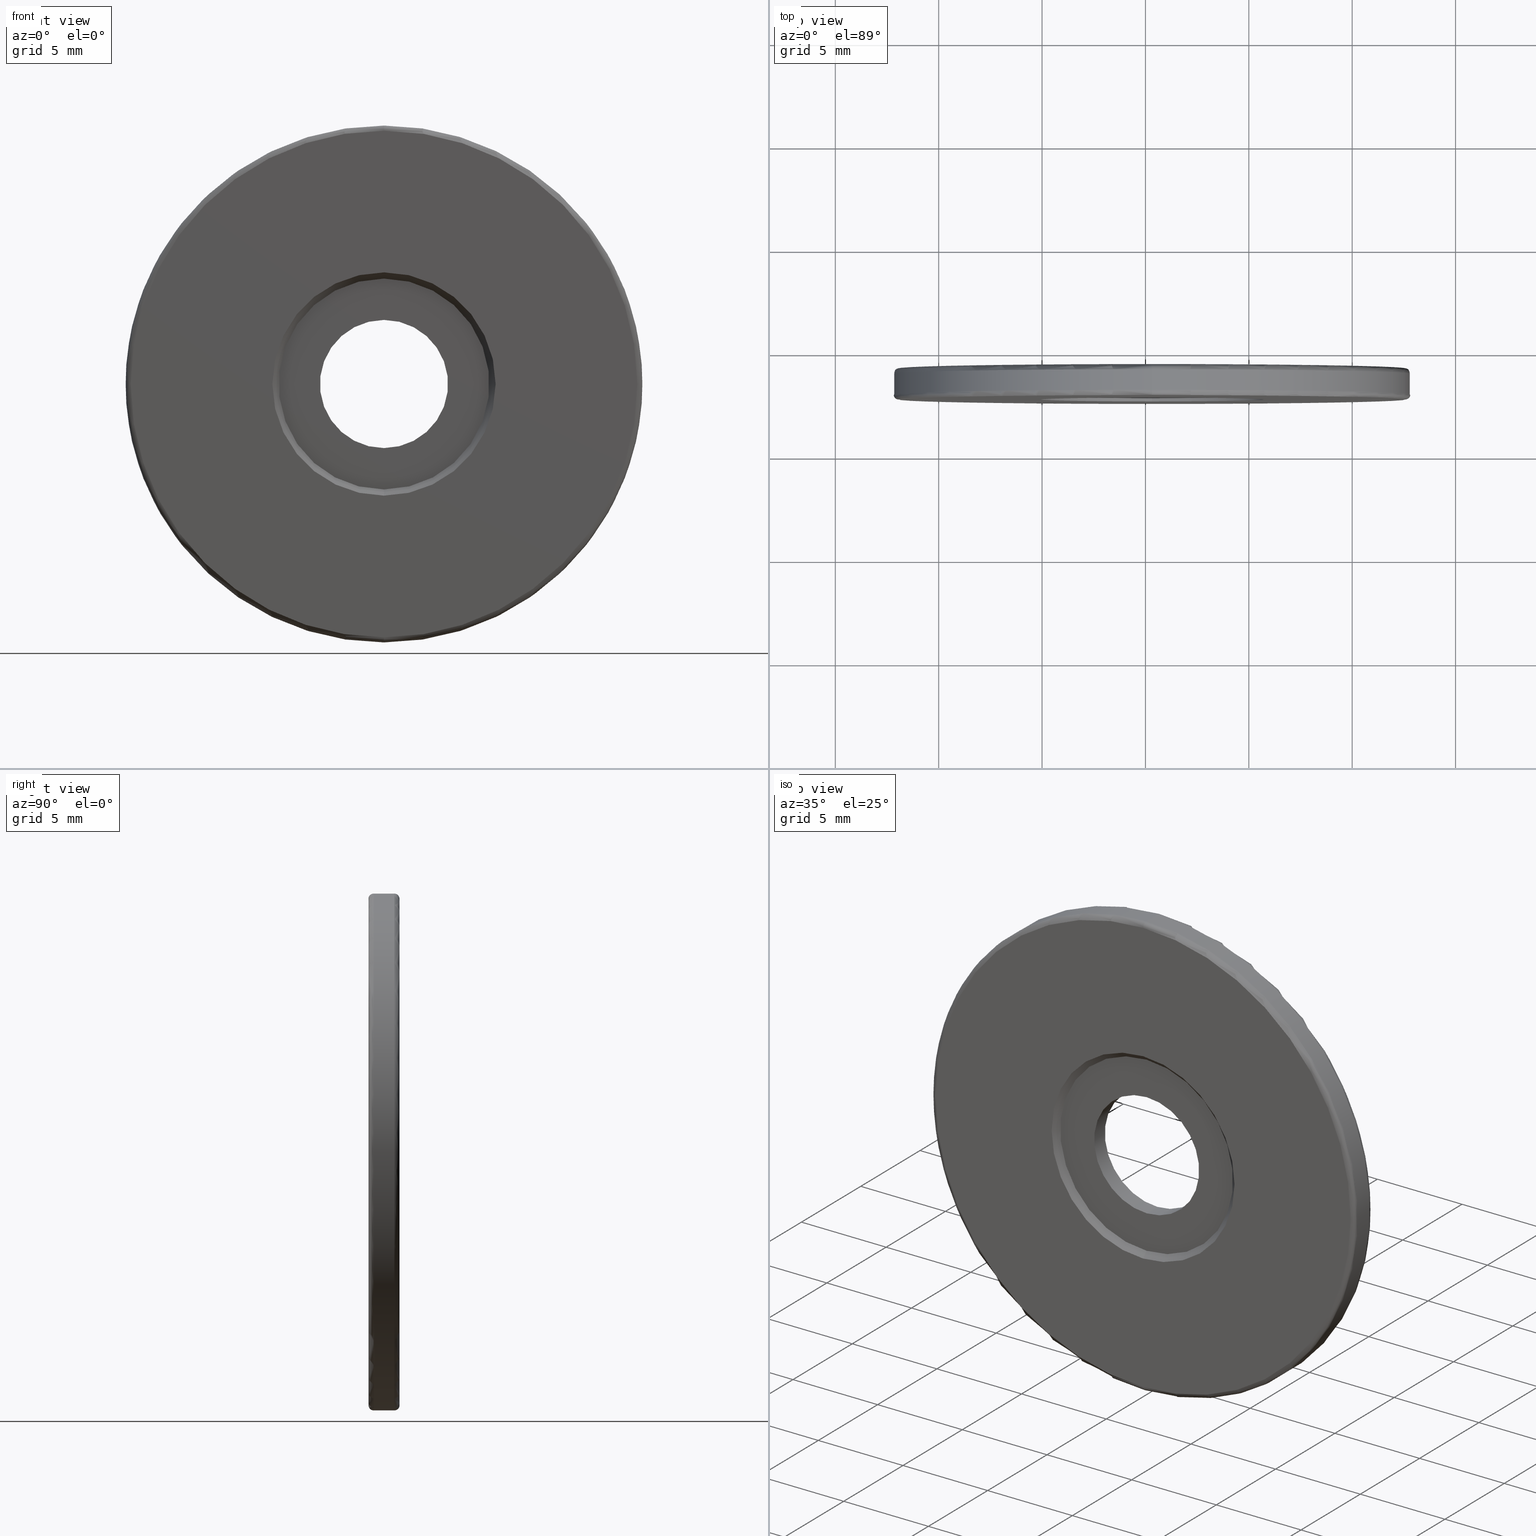
[diagram: canonical four-view strip — front | top / right | iso, engineering-drawing reading convention]
A machine part, canonical four-view strip (front | top / right | iso — engineering-drawing reading convention). The complete STEP part file that produces these views, byte-faithful:
ISO-10303-21;
HEADER;
FILE_DESCRIPTION (( 'STEP AP203' ),
    '1' );
FILE_NAME ('1.4.2.100_ZGH-25-DK1.5.STEP',
    '2022-04-15T02:59:19',
    ( '' ),
    ( '' ),
    'SwSTEP 2.0',
    'SolidWorks 2021',
    '' );
FILE_SCHEMA (( 'CONFIG_CONTROL_DESIGN' ));
ENDSEC;

DATA;
#1 = FACE_OUTER_BOUND ( 'NONE', #225, .T. ) ;
#2 = VECTOR ( 'NONE', #224, 1000.000000000000000 ) ;
#3 = AXIS2_PLACEMENT_3D ( 'NONE', #15, #168, #432 ) ;
#4 = FACE_OUTER_BOUND ( 'NONE', #51, .T. ) ;
#5 = ORIENTED_EDGE ( 'NONE', *, *, #411, .T. ) ;
#6 = FACE_OUTER_BOUND ( 'NONE', #358, .T. ) ;
#7 = ORIENTED_EDGE ( 'NONE', *, *, #420, .F. ) ;
#8 = CARTESIAN_POINT ( 'NONE',  ( -4.682026255059962949, -0.8449759769982747581, 37.50000000000000711 ) ) ;
#9 = VERTEX_POINT ( 'NONE', #408 ) ;
#10 = EDGE_CURVE ( 'NONE', #267, #476, #139, .T. ) ;
#11 = CONICAL_SURFACE ( 'NONE', #380, 5.100000000000000533, 0.7853981633974453924 ) ;
#12 = CARTESIAN_POINT ( 'NONE',  ( -4.682026255059964726, -2.344975976998274980, 25.00000000000000000 ) ) ;
#13 = AXIS2_PLACEMENT_3D ( 'NONE', #444, #89, #327 ) ;
#14 = EDGE_LOOP ( 'NONE', ( #232, #16, #163, #234 ) ) ;
#15 = CARTESIAN_POINT ( 'NONE',  ( -4.682026255059964726, -2.094975976998274536, 25.00000000000000000 ) ) ;
#16 = ORIENTED_EDGE ( 'NONE', *, *, #211, .T. ) ;
#17 = ADVANCED_FACE ( 'NONE', ( #436 ), #154, .F. ) ;
#18 = CARTESIAN_POINT ( 'NONE',  ( -4.682026255059964726, -0.8449759769982747581, 25.00000000000000000 ) ) ;
#19 = PRODUCT_RELATED_PRODUCT_CATEGORY ( 'detail', '', ( #316 ) ) ;
#20 = APPROVAL_STATUS ( 'not_yet_approved' ) ;
#21 = DIRECTION ( 'NONE',  ( 0.0000000000000000000, -0.7071067811865505703, -0.7071067811865444641 ) ) ;
#22 = AXIS2_PLACEMENT_3D ( 'NONE', #26, #375, #24 ) ;
#23 = COORDINATED_UNIVERSAL_TIME_OFFSET ( 8, 0, .AHEAD. ) ;
#24 = DIRECTION ( 'NONE',  ( 0.0000000000000000000, 0.0000000000000000000, -1.000000000000000000 ) ) ;
#25 = PERSON_AND_ORGANIZATION_ROLE ( 'creator' ) ;
#26 = CARTESIAN_POINT ( 'NONE',  ( -4.682026255059964726, -0.8449759769982747581, 25.00000000000000000 ) ) ;
#27 = PERSON_AND_ORGANIZATION ( #159, #123 ) ;
#28 = DIRECTION ( 'NONE',  ( 0.0000000000000000000, 1.000000000000000000, 0.0000000000000000000 ) ) ;
#29 = TOROIDAL_SURFACE ( 'NONE', #106, 12.25000000000000000, 0.2500000000000000000 ) ;
#30 = CIRCLE ( 'NONE', #71, 12.25000000000000355 ) ;
#31 = CARTESIAN_POINT ( 'NONE',  ( -4.682026255059964726, -2.344975976998274980, 25.00000000000000000 ) ) ;
#32 = LINE ( 'NONE', #115, #397 ) ;
#33 = EDGE_CURVE ( 'NONE', #476, #43, #355, .T. ) ;
#34 = ORIENTED_EDGE ( 'NONE', *, *, #182, .T. ) ;
#35 = CC_DESIGN_PERSON_AND_ORGANIZATION_ASSIGNMENT ( #27, #285, ( #324 ) ) ;
#36 = CONICAL_SURFACE ( 'NONE', #322, 5.100000000000000533, 0.7853981633974453924 ) ;
#37 = DIRECTION ( 'NONE',  ( 0.0000000000000000000, 0.0000000000000000000, 1.000000000000000000 ) ) ;
#38 = ORIENTED_EDGE ( 'NONE', *, *, #319, .T. ) ;
#39 = CARTESIAN_POINT ( 'NONE',  ( -4.682026255059964726, -0.8449759769982747581, 25.00000000000000000 ) ) ;
#40 = ORIENTED_EDGE ( 'NONE', *, *, #361, .T. ) ;
#41 = EDGE_CURVE ( 'NONE', #387, #125, #332, .T. ) ;
#42 = DIRECTION ( 'NONE',  ( 0.0000000000000000000, 1.000000000000000000, 0.0000000000000000000 ) ) ;
#43 = VERTEX_POINT ( 'NONE', #209 ) ;
#44 = CIRCLE ( 'NONE', #448, 0.2500000000000002220 ) ;
#45 = FACE_OUTER_BOUND ( 'NONE', #313, .T. ) ;
#46 = DIRECTION ( 'NONE',  ( -0.0000000000000000000, -1.000000000000000000, -0.0000000000000000000 ) ) ;
#47 = DIRECTION ( 'NONE',  ( 0.0000000000000000000, 1.000000000000000000, 0.0000000000000000000 ) ) ;
#48 = VERTEX_POINT ( 'NONE', #454 ) ;
#49 = EDGE_CURVE ( 'NONE', #265, #326, #472, .T. ) ;
#50 = DIRECTION ( 'NONE',  ( -0.0000000000000000000, -1.000000000000000000, -0.0000000000000000000 ) ) ;
#51 = EDGE_LOOP ( 'NONE', ( #7, #425, #440, #5 ) ) ;
#52 = AXIS2_PLACEMENT_3D ( 'NONE', #344, #107, #145 ) ;
#53 = DIRECTION ( 'NONE',  ( 0.0000000000000000000, 0.0000000000000000000, 1.000000000000000000 ) ) ;
#54 =( GEOMETRIC_REPRESENTATION_CONTEXT ( 3 ) GLOBAL_UNCERTAINTY_ASSIGNED_CONTEXT ( ( #102 ) ) GLOBAL_UNIT_ASSIGNED_CONTEXT ( ( #233, #368, #495 ) ) REPRESENTATION_CONTEXT ( 'NONE', 'WORKASPACE' ) );
#55 = ORIENTED_EDGE ( 'NONE', *, *, #49, .T. ) ;
#56 = DATE_TIME_ROLE ( 'classification_date' ) ;
#57 = DIRECTION ( 'NONE',  ( -0.0000000000000000000, -1.000000000000000000, -0.0000000000000000000 ) ) ;
#58 = EDGE_CURVE ( 'NONE', #241, #48, #164, .T. ) ;
#59 = DATE_AND_TIME ( #374, #296 ) ;
#60 = LINE ( 'NONE', #491, #312 ) ;
#61 = PERSON_AND_ORGANIZATION_ROLE ( 'creator' ) ;
#62 = AXIS2_PLACEMENT_3D ( 'NONE', #422, #384, #37 ) ;
#63 = DIRECTION ( 'NONE',  ( -0.0000000000000000000, 1.000000000000000000, -0.0000000000000000000 ) ) ;
#64 = TOROIDAL_SURFACE ( 'NONE', #181, 12.25000000000000000, 0.2500000000000000000 ) ;
#65 = DATE_AND_TIME ( #490, #141 ) ;
#66 = DIRECTION ( 'NONE',  ( 0.0000000000000000000, -0.0000000000000000000, 1.000000000000000000 ) ) ;
#67 = EDGE_CURVE ( 'NONE', #284, #207, #134, .T. ) ;
#68 = APPROVAL_ROLE ( '' ) ;
#69 = DIRECTION ( 'NONE',  ( 0.0000000000000000000, 0.0000000000000000000, -1.000000000000000000 ) ) ;
#70 = AXIS2_PLACEMENT_3D ( 'NONE', #74, #502, #424 ) ;
#71 = AXIS2_PLACEMENT_3D ( 'NONE', #441, #47, #120 ) ;
#72 = ADVANCED_FACE ( 'NONE', ( #180 ), #11, .F. ) ;
#73 = PLANE ( 'NONE',  #52 ) ;
#74 = CARTESIAN_POINT ( 'NONE',  ( -4.682026255059964726, -0.8449759769982747581, 25.00000000000000000 ) ) ;
#75 = DIRECTION ( 'NONE',  ( 0.0000000000000000000, 1.000000000000000000, 0.0000000000000000000 ) ) ;
#76 = ORIENTED_EDGE ( 'NONE', *, *, #335, .F. ) ;
#77 = CIRCLE ( 'NONE', #222, 5.400000000000002132 ) ;
#78 = CC_DESIGN_APPROVAL ( #80, ( #509 ) ) ;
#79 = DIRECTION ( 'NONE',  ( 0.0000000000000000000, 1.000000000000000000, 0.0000000000000000000 ) ) ;
#80 = APPROVAL ( #336, 'δָ��' ) ;
#81 = ORIENTED_EDGE ( 'NONE', *, *, #98, .F. ) ;
#82 = EDGE_LOOP ( 'NONE', ( #394, #392 ) ) ;
#83 = CARTESIAN_POINT ( 'NONE',  ( -4.682026255059964726, -2.344975976998274980, 25.00000000000000000 ) ) ;
#84 = EDGE_CURVE ( 'NONE', #284, #161, #97, .T. ) ;
#85 = FACE_OUTER_BOUND ( 'NONE', #239, .T. ) ;
#86 = EDGE_LOOP ( 'NONE', ( #272, #55 ) ) ;
#87 = LINE ( 'NONE', #402, #348 ) ;
#88 = ORIENTED_EDGE ( 'NONE', *, *, #158, .F. ) ;
#89 = DIRECTION ( 'NONE',  ( -0.0000000000000000000, 1.000000000000000000, -0.0000000000000000000 ) ) ;
#90 = ORIENTED_EDGE ( 'NONE', *, *, #467, .T. ) ;
#91 = APPROVAL_PERSON_ORGANIZATION ( #208, #415, #218 ) ;
#92 = ORIENTED_EDGE ( 'NONE', *, *, #119, .F. ) ;
#93 = MECHANICAL_CONTEXT ( 'NONE', #450, 'mechanical' ) ;
#94 = CARTESIAN_POINT ( 'NONE',  ( -4.682026255059964726, -1.144975976998274803, 21.90000000000000213 ) ) ;
#95 = CARTESIAN_POINT ( 'NONE',  ( -4.682026255059964726, -2.094975976998274536, 37.25000000000000711 ) ) ;
#96 = SECURITY_CLASSIFICATION_LEVEL ( 'unclassified' ) ;
#97 = CIRCLE ( 'NONE', #457, 12.50000000000000355 ) ;
#98 = EDGE_CURVE ( 'NONE', #161, #431, #287, .T. ) ;
#99 = FACE_BOUND ( 'NONE', #169, .T. ) ;
#100 = LOCAL_TIME ( 10, 59, 19.00000000000000000, #416 ) ;
#101 = DIRECTION ( 'NONE',  ( 0.0000000000000000000, 1.000000000000000000, 0.0000000000000000000 ) ) ;
#102 = UNCERTAINTY_MEASURE_WITH_UNIT (LENGTH_MEASURE( 1.000000000000000082E-05 ), #233, 'distance_accuracy_value', 'NONE');
#103 = DIRECTION ( 'NONE',  ( 0.0000000000000000000, 0.0000000000000000000, 1.000000000000000000 ) ) ;
#104 = CARTESIAN_POINT ( 'NONE',  ( -4.682026255059964726, -1.094975976998274758, 25.00000000000000000 ) ) ;
#105 = ADVANCED_FACE ( 'NONE', ( #291 ), #371, .T. ) ;
#106 = AXIS2_PLACEMENT_3D ( 'NONE', #148, #466, #109 ) ;
#107 = DIRECTION ( 'NONE',  ( 0.0000000000000000000, -1.000000000000000000, 0.0000000000000000000 ) ) ;
#108 = EDGE_LOOP ( 'NONE', ( #113, #401 ) ) ;
#109 = DIRECTION ( 'NONE',  ( 0.0000000000000000000, 0.0000000000000000000, 1.000000000000000000 ) ) ;
#110 = ORIENTED_EDGE ( 'NONE', *, *, #434, .T. ) ;
#111 = CARTESIAN_POINT ( 'NONE',  ( -4.682026255059964726, -1.144975976998274803, 25.00000000000000000 ) ) ;
#112 = EDGE_CURVE ( 'NONE', #166, #463, #77, .T. ) ;
#113 = ORIENTED_EDGE ( 'NONE', *, *, #485, .F. ) ;
#114 = AXIS2_PLACEMENT_3D ( 'NONE', #360, #486, #363 ) ;
#115 = CARTESIAN_POINT ( 'NONE',  ( -4.682026255059964726, -1.144975976998268585, 30.10000000000000142 ) ) ;
#116 = VERTEX_POINT ( 'NONE', #334 ) ;
#117 = CYLINDRICAL_SURFACE ( 'NONE', #458, 3.099999999999998757 ) ;
#118 = ORIENTED_EDGE ( 'NONE', *, *, #33, .T. ) ;
#119 = EDGE_CURVE ( 'NONE', #463, #166, #365, .T. ) ;
#120 = DIRECTION ( 'NONE',  ( 0.0000000000000000000, 0.0000000000000000000, 1.000000000000000000 ) ) ;
#121 = ORIENTED_EDGE ( 'NONE', *, *, #41, .T. ) ;
#122 = CC_DESIGN_PERSON_AND_ORGANIZATION_ASSIGNMENT ( #136, #25, ( #509 ) ) ;
#123 = ORGANIZATION ( 'δָ��', 'δָ��', '' ) ;
#124 = LINE ( 'NONE', #314, #483 ) ;
#125 = VERTEX_POINT ( 'NONE', #451 ) ;
#126 = CARTESIAN_POINT ( 'NONE',  ( -4.682026255059964726, -1.144975976998274803, 25.00000000000000000 ) ) ;
#127 = ORIENTED_EDGE ( 'NONE', *, *, #112, .T. ) ;
#128 = PERSON_AND_ORGANIZATION ( #159, #123 ) ;
#129 = EDGE_LOOP ( 'NONE', ( #489, #479, #191, #110 ) ) ;
#130 = AXIS2_PLACEMENT_3D ( 'NONE', #95, #496, #212 ) ;
#131 = PERSON_AND_ORGANIZATION_ROLE ( 'design_owner' ) ;
#132 = APPROVAL_PERSON_ORGANIZATION ( #410, #290, #251 ) ;
#133 = DIRECTION ( 'NONE',  ( 0.0000000000000000000, 0.0000000000000000000, 1.000000000000000000 ) ) ;
#134 = LINE ( 'NONE', #221, #438 ) ;
#135 = ADVANCED_FACE ( 'NONE', ( #99, #174 ), #417, .T. ) ;
#136 = PERSON_AND_ORGANIZATION ( #159, #123 ) ;
#137 = CARTESIAN_POINT ( 'NONE',  ( -4.682026255059964726, -2.344975976998274980, 25.00000000000000000 ) ) ;
#138 = PERSON_AND_ORGANIZATION ( #159, #123 ) ;
#139 = CIRCLE ( 'NONE', #508, 12.25000000000000355 ) ;
#140 = DIRECTION ( 'NONE',  ( 0.0000000000000000000, 1.000000000000000000, 0.0000000000000000000 ) ) ;
#141 = LOCAL_TIME ( 10, 59, 19.00000000000000000, #449 ) ;
#142 = CARTESIAN_POINT ( 'NONE',  ( -4.682026255059964726, -2.344975976998274980, 19.59999999999999787 ) ) ;
#143 = FACE_OUTER_BOUND ( 'NONE', #484, .T. ) ;
#144 = EDGE_LOOP ( 'NONE', ( #121, #199 ) ) ;
#145 = DIRECTION ( 'NONE',  ( 0.0000000000000000000, 0.0000000000000000000, 1.000000000000000000 ) ) ;
#146 = CIRCLE ( 'NONE', #506, 5.399999999999991473 ) ;
#147 = VECTOR ( 'NONE', #50, 1000.000000000000000 ) ;
#148 = CARTESIAN_POINT ( 'NONE',  ( -4.682026255059964726, -2.094975976998274536, 25.00000000000000000 ) ) ;
#149 = EDGE_LOOP ( 'NONE', ( #88, #351, #118, #315 ) ) ;
#150 = EDGE_CURVE ( 'NONE', #43, #207, #428, .T. ) ;
#151 = DIRECTION ( 'NONE',  ( 0.0000000000000000000, 1.000000000000000000, 0.0000000000000000000 ) ) ;
#152 = EDGE_LOOP ( 'NONE', ( #127, #471 ) ) ;
#153 = CARTESIAN_POINT ( 'NONE',  ( -4.682026255059964726, -1.144975976998268585, 25.00000000000000000 ) ) ;
#154 = CONICAL_SURFACE ( 'NONE', #295, 5.400000000000002132, 0.7853981633974439491 ) ;
#155 = AXIS2_PLACEMENT_3D ( 'NONE', #126, #240, #281 ) ;
#156 = CARTESIAN_POINT ( 'NONE',  ( -4.682026255059964726, -1.144975976998274803, 25.00000000000000000 ) ) ;
#157 = ORIENTED_EDGE ( 'NONE', *, *, #58, .F. ) ;
#158 = EDGE_CURVE ( 'NONE', #267, #207, #44, .T. ) ;
#159 = PERSON ( 'δָ��', 'δָ��', 'δָ��', ('δָ��'), ('δָ��'), ('δָ��') ) ;
#160 = CARTESIAN_POINT ( 'NONE',  ( -4.682026255059964726, -2.344975976998274980, 25.00000000000000000 ) ) ;
#161 = VERTEX_POINT ( 'NONE', #337 ) ;
#162 = CARTESIAN_POINT ( 'NONE',  ( -4.682026255059963837, -2.344975976998274980, 30.40000000000000213 ) ) ;
#163 = ORIENTED_EDGE ( 'NONE', *, *, #304, .F. ) ;
#164 = CIRCLE ( 'NONE', #260, 3.099999999999998757 ) ;
#165 = CYLINDRICAL_SURFACE ( 'NONE', #439, 3.099999999999998757 ) ;
#166 = VERTEX_POINT ( 'NONE', #142 ) ;
#167 = CC_DESIGN_PERSON_AND_ORGANIZATION_ASSIGNMENT ( #138, #131, ( #316 ) ) ;
#168 = DIRECTION ( 'NONE',  ( 0.0000000000000000000, 1.000000000000000000, 0.0000000000000000000 ) ) ;
#169 = EDGE_LOOP ( 'NONE', ( #389, #76 ) ) ;
#170 = APPROVAL_DATE_TIME ( #289, #415 ) ;
#171 = CARTESIAN_POINT ( 'NONE',  ( -4.682026255059964726, -1.144975976998268585, 25.00000000000000000 ) ) ;
#172 = CIRCLE ( 'NONE', #464, 0.2500000000000002220 ) ;
#173 = COORDINATED_UNIVERSAL_TIME_OFFSET ( 8, 0, .AHEAD. ) ;
#174 = FACE_OUTER_BOUND ( 'NONE', #144, .T. ) ;
#175 = EDGE_CURVE ( 'NONE', #431, #230, #492, .T. ) ;
#176 = APPLICATION_PROTOCOL_DEFINITION ( 'international standard', 'config_control_design', 1994, #250 ) ;
#177 = DIRECTION ( 'NONE',  ( 0.0000000000000000000, 1.000000000000000000, 0.0000000000000000000 ) ) ;
#178 = PERSON_AND_ORGANIZATION ( #159, #123 ) ;
#179 = DIRECTION ( 'NONE',  ( -0.0000000000000000000, -1.000000000000000000, -0.0000000000000000000 ) ) ;
#180 = FACE_OUTER_BOUND ( 'NONE', #14, .T. ) ;
#181 = AXIS2_PLACEMENT_3D ( 'NONE', #320, #235, #275 ) ;
#182 = EDGE_CURVE ( 'NONE', #308, #166, #60, .T. ) ;
#183 = DIRECTION ( 'NONE',  ( -0.0000000000000000000, -1.000000000000000000, -0.0000000000000000000 ) ) ;
#184 = MANIFOLD_SURFACE_SHAPE_REPRESENTATION ( '1.4.2.100_ZGH-25-DK1.5', ( #475, #189 ), #54 ) ;
#185 = CARTESIAN_POINT ( 'NONE',  ( -4.682026255059964726, -2.094975976998274536, 12.50000000000000000 ) ) ;
#186 = EDGE_LOOP ( 'NONE', ( #276, #38, #34, #92 ) ) ;
#187 = FACE_BOUND ( 'NONE', #328, .T. ) ;
#188 = AXIS2_PLACEMENT_3D ( 'NONE', #111, #79, #352 ) ;
#189 = AXIS2_PLACEMENT_3D ( 'NONE', #255, #453, #459 ) ;
#190 = CARTESIAN_POINT ( 'NONE',  ( -4.682026255059964726, -0.8449759769982747581, 25.00000000000000000 ) ) ;
#191 = ORIENTED_EDGE ( 'NONE', *, *, #67, .T. ) ;
#192 = PLANE ( 'NONE',  #413 ) ;
#193 = ORIENTED_EDGE ( 'NONE', *, *, #150, .F. ) ;
#194 = DIRECTION ( 'NONE',  ( -0.0000000000000000000, 1.000000000000000000, -0.0000000000000000000 ) ) ;
#195 = ORIENTED_EDGE ( 'NONE', *, *, #112, .F. ) ;
#196 = AXIS2_PLACEMENT_3D ( 'NONE', #400, #238, #203 ) ;
#197 = CC_DESIGN_DATE_AND_TIME_ASSIGNMENT ( #59, #297, ( #478 ) ) ;
#198 = FACE_OUTER_BOUND ( 'NONE', #82, .T. ) ;
#199 = ORIENTED_EDGE ( 'NONE', *, *, #383, .T. ) ;
#200 = PRODUCT_DEFINITION_SHAPE ( 'NONE', 'NONE',  #478 ) ;
#201 = DIRECTION ( 'NONE',  ( 0.0000000000000000000, 0.0000000000000000000, 1.000000000000000000 ) ) ;
#202 = EDGE_LOOP ( 'NONE', ( #487, #442, #364, #367 ) ) ;
#203 = DIRECTION ( 'NONE',  ( 0.0000000000000000000, 0.0000000000000000000, -1.000000000000000000 ) ) ;
#204 = VERTEX_POINT ( 'NONE', #94 ) ;
#205 = AXIS2_PLACEMENT_3D ( 'NONE', #460, #28, #379 ) ;
#206 = EDGE_CURVE ( 'NONE', #161, #284, #237, .T. ) ;
#207 = VERTEX_POINT ( 'NONE', #185 ) ;
#208 = PERSON_AND_ORGANIZATION ( #159, #123 ) ;
#209 = CARTESIAN_POINT ( 'NONE',  ( -4.682026255059962949, -2.094975976998274536, 37.50000000000000711 ) ) ;
#210 = CALENDAR_DATE ( 2022, 15, 4 ) ;
#211 = EDGE_CURVE ( 'NONE', #125, #265, #264, .T. ) ;
#212 = DIRECTION ( 'NONE',  ( 0.0000000000000000000, 0.0000000000000000000, 1.000000000000000000 ) ) ;
#213 = ADVANCED_FACE ( 'NONE', ( #143 ), #269, .T. ) ;
#214 = AXIS2_PLACEMENT_3D ( 'NONE', #258, #179, #461 ) ;
#215 = COORDINATED_UNIVERSAL_TIME_OFFSET ( 8, 0, .AHEAD. ) ;
#216 = CC_DESIGN_APPROVAL ( #290, ( #478 ) ) ;
#217 = DIRECTION ( 'NONE',  ( 0.0000000000000000000, 0.0000000000000000000, 1.000000000000000000 ) ) ;
#218 = APPROVAL_ROLE ( '' ) ;
#219 = DIRECTION ( 'NONE',  ( 1.000000000000000000, -0.0000000000000000000, 1.224646799147353207E-16 ) ) ;
#220 = CALENDAR_DATE ( 2022, 15, 4 ) ;
#221 = CARTESIAN_POINT ( 'NONE',  ( -4.682026255059964726, -0.8449759769982747581, 12.50000000000000000 ) ) ;
#222 = AXIS2_PLACEMENT_3D ( 'NONE', #499, #177, #133 ) ;
#223 = CARTESIAN_POINT ( 'NONE',  ( -4.682026255059962949, -1.094975976998274758, 12.50000000000000000 ) ) ;
#224 = DIRECTION ( 'NONE',  ( -0.0000000000000000000, 1.000000000000000000, -0.0000000000000000000 ) ) ;
#225 = EDGE_LOOP ( 'NONE', ( #303, #399, #423, #274 ) ) ;
#226 = DIRECTION ( 'NONE',  ( 1.000000000000000000, -0.0000000000000000000, 1.224646799147353207E-16 ) ) ;
#227 = ADVANCED_FACE ( 'NONE', ( #468, #187 ), #73, .T. ) ;
#228 = FACE_OUTER_BOUND ( 'NONE', #129, .T. ) ;
#229 = AXIS2_PLACEMENT_3D ( 'NONE', #292, #101, #418 ) ;
#230 = VERTEX_POINT ( 'NONE', #306 ) ;
#231 = DIRECTION ( 'NONE',  ( 0.0000000000000000000, -0.0000000000000000000, 1.000000000000000000 ) ) ;
#232 = ORIENTED_EDGE ( 'NONE', *, *, #383, .F. ) ;
#233 =( LENGTH_UNIT ( ) NAMED_UNIT ( * ) SI_UNIT ( .MILLI., .METRE. ) );
#234 = ORIENTED_EDGE ( 'NONE', *, *, #280, .F. ) ;
#235 = DIRECTION ( 'NONE',  ( 0.0000000000000000000, 1.000000000000000000, 0.0000000000000000000 ) ) ;
#236 = CARTESIAN_POINT ( 'NONE',  ( -4.682026255059964726, -2.344975976998274980, 25.00000000000000000 ) ) ;
#237 = CIRCLE ( 'NONE', #500, 12.50000000000000355 ) ;
#238 = DIRECTION ( 'NONE',  ( -0.0000000000000000000, 1.000000000000000000, -0.0000000000000000000 ) ) ;
#239 = EDGE_LOOP ( 'NONE', ( #513, #503, #193, #481 ) ) ;
#240 = DIRECTION ( 'NONE',  ( 0.0000000000000000000, 1.000000000000000000, 0.0000000000000000000 ) ) ;
#241 = VERTEX_POINT ( 'NONE', #388 ) ;
#242 = PLANE ( 'NONE',  #473 ) ;
#243 = ORIENTED_EDGE ( 'NONE', *, *, #182, .F. ) ;
#244 = AXIS2_PLACEMENT_3D ( 'NONE', #341, #256, #66 ) ;
#245 = TOROIDAL_SURFACE ( 'NONE', #3, 12.25000000000000000, 0.2500000000000000000 ) ;
#246 = EDGE_LOOP ( 'NONE', ( #505, #353 ) ) ;
#247 = ADVANCED_FACE ( 'NONE', ( #268 ), #29, .T. ) ;
#248 = CARTESIAN_POINT ( 'NONE',  ( -4.682026255059964726, -1.094975976998274758, 25.00000000000000000 ) ) ;
#249 = CC_DESIGN_PERSON_AND_ORGANIZATION_ASSIGNMENT ( #178, #61, ( #478 ) ) ;
#250 = APPLICATION_CONTEXT ( 'configuration controlled 3d designs of mechanical parts and assemblies' ) ;
#251 = APPROVAL_ROLE ( '' ) ;
#252 = DIRECTION ( 'NONE',  ( -0.0000000000000000000, -1.000000000000000000, -0.0000000000000000000 ) ) ;
#253 = CIRCLE ( 'NONE', #307, 12.25000000000000355 ) ;
#254 = CONICAL_SURFACE ( 'NONE', #381, 5.400000000000002132, 0.7853981633974439491 ) ;
#255 = CARTESIAN_POINT ( 'NONE',  ( 0.0000000000000000000, 0.0000000000000000000, 0.0000000000000000000 ) ) ;
#256 = DIRECTION ( 'NONE',  ( 0.0000000000000000000, 1.000000000000000000, 0.0000000000000000000 ) ) ;
#257 = APPROVAL_DATE_TIME ( #65, #290 ) ;
#258 = CARTESIAN_POINT ( 'NONE',  ( -4.682026255059964726, -0.8449759769982747581, 25.00000000000000000 ) ) ;
#259 = CARTESIAN_POINT ( 'NONE',  ( -4.682026255059964726, -1.094975976998274758, 37.25000000000000711 ) ) ;
#260 = AXIS2_PLACEMENT_3D ( 'NONE', #294, #63, #69 ) ;
#261 = CARTESIAN_POINT ( 'NONE',  ( -4.682026255059962949, -2.344975976998274980, 12.75000000000000178 ) ) ;
#262 = CC_DESIGN_SECURITY_CLASSIFICATION ( #324, ( #509 ) ) ;
#263 = ADVANCED_FACE ( 'NONE', ( #228 ), #512, .T. ) ;
#264 = LINE ( 'NONE', #504, #372 ) ;
#265 = VERTEX_POINT ( 'NONE', #430 ) ;
#266 = CARTESIAN_POINT ( 'NONE',  ( -4.682026255059962949, -1.094975976998274758, 12.75000000000000178 ) ) ;
#267 = VERTEX_POINT ( 'NONE', #261 ) ;
#268 = FACE_OUTER_BOUND ( 'NONE', #149, .T. ) ;
#269 = TOROIDAL_SURFACE ( 'NONE', #406, 12.25000000000000000, 0.2500000000000000000 ) ;
#270 = DIRECTION ( 'NONE',  ( -0.0000000000000000000, 1.000000000000000000, -0.0000000000000000000 ) ) ;
#271 = EDGE_CURVE ( 'NONE', #48, #116, #474, .T. ) ;
#272 = ORIENTED_EDGE ( 'NONE', *, *, #304, .T. ) ;
#273 = CARTESIAN_POINT ( 'NONE',  ( -4.682026255059964726, -2.344975976998274980, 25.00000000000000000 ) ) ;
#274 = ORIENTED_EDGE ( 'NONE', *, *, #49, .F. ) ;
#275 = DIRECTION ( 'NONE',  ( 0.0000000000000000000, 0.0000000000000000000, 1.000000000000000000 ) ) ;
#276 = ORIENTED_EDGE ( 'NONE', *, *, #467, .F. ) ;
#277 = CIRCLE ( 'NONE', #62, 5.100000000000000533 ) ;
#278 = OPEN_SHELL ( 'NONE', ( #72, #452, #17, #507, #105, #443, #323, #213, #263, #247, #494, #376, #227, #390, #135, #343 ) ) ;
#279 = LOCAL_TIME ( 10, 59, 19.00000000000000000, #23 ) ;
#280 = EDGE_CURVE ( 'NONE', #387, #326, #32, .T. ) ;
#281 = DIRECTION ( 'NONE',  ( 0.0000000000000000000, 0.0000000000000000000, 1.000000000000000000 ) ) ;
#282 = ORIENTED_EDGE ( 'NONE', *, *, #206, .F. ) ;
#283 = CARTESIAN_POINT ( 'NONE',  ( -4.682026255059964726, -0.8449759769982747581, 37.25000000000000711 ) ) ;
#284 = VERTEX_POINT ( 'NONE', #223 ) ;
#285 = PERSON_AND_ORGANIZATION_ROLE ( 'classification_officer' ) ;
#286 = ORIENTED_EDGE ( 'NONE', *, *, #84, .F. ) ;
#287 = CIRCLE ( 'NONE', #305, 0.2500000000000002220 ) ;
#288 = AXIS2_PLACEMENT_3D ( 'NONE', #156, #42, #53 ) ;
#289 = DATE_AND_TIME ( #498, #414 ) ;
#290 = APPROVAL ( #407, 'δָ��' ) ;
#291 = FACE_OUTER_BOUND ( 'NONE', #202, .T. ) ;
#292 = CARTESIAN_POINT ( 'NONE',  ( -4.682026255059964726, -1.144975976998274803, 25.00000000000000000 ) ) ;
#293 = PERSON_AND_ORGANIZATION ( #159, #123 ) ;
#294 = CARTESIAN_POINT ( 'NONE',  ( -4.682026255059964726, -2.044975976998274714, 25.00000000000000000 ) ) ;
#295 = AXIS2_PLACEMENT_3D ( 'NONE', #236, #46, #369 ) ;
#296 = LOCAL_TIME ( 10, 59, 19.00000000000000000, #215 ) ;
#297 = DATE_TIME_ROLE ( 'creation_date' ) ;
#298 = EDGE_CURVE ( 'NONE', #284, #230, #172, .T. ) ;
#299 = CARTESIAN_POINT ( 'NONE',  ( -4.682026255059964726, -1.094975976998274758, 25.00000000000000000 ) ) ;
#300 = DIRECTION ( 'NONE',  ( 0.0000000000000000000, 1.000000000000000000, 0.0000000000000000000 ) ) ;
#301 = CARTESIAN_POINT ( 'NONE',  ( -4.682026255059964726, -2.344975976998274980, 28.10000000000000142 ) ) ;
#302 = DESIGN_CONTEXT ( 'detailed design', #250, 'design' ) ;
#303 = ORIENTED_EDGE ( 'NONE', *, *, #211, .F. ) ;
#304 = EDGE_CURVE ( 'NONE', #326, #265, #146, .T. ) ;
#305 = AXIS2_PLACEMENT_3D ( 'NONE', #259, #331, #217 ) ;
#306 = CARTESIAN_POINT ( 'NONE',  ( -4.682026255059962949, -0.8449759769982747581, 12.75000000000000178 ) ) ;
#307 = AXIS2_PLACEMENT_3D ( 'NONE', #31, #183, #342 ) ;
#308 = VERTEX_POINT ( 'NONE', #470 ) ;
#309 = FACE_OUTER_BOUND ( 'NONE', #246, .T. ) ;
#310 = DIRECTION ( 'NONE',  ( 0.0000000000000000000, 0.0000000000000000000, -1.000000000000000000 ) ) ;
#311 = DIRECTION ( 'NONE',  ( 0.0000000000000000000, 1.000000000000000000, 0.0000000000000000000 ) ) ;
#312 = VECTOR ( 'NONE', #21, 1000.000000000000114 ) ;
#313 = EDGE_LOOP ( 'NONE', ( #157, #445, #433, #403 ) ) ;
#314 = CARTESIAN_POINT ( 'NONE',  ( -4.682026255059963837, -2.344975976998274980, 30.40000000000000213 ) ) ;
#315 = ORIENTED_EDGE ( 'NONE', *, *, #434, .F. ) ;
#316 = PRODUCT ( '1.4.2.100_ZGH-25-DK1.5', '1.4.2.100_ZGH-25-DK1.5', '', ( #93 ) ) ;
#317 = DIRECTION ( 'NONE',  ( 0.0000000000000000000, 0.0000000000000000000, 1.000000000000000000 ) ) ;
#318 = DIRECTION ( 'NONE',  ( -0.0000000000000000000, -1.000000000000000000, -0.0000000000000000000 ) ) ;
#319 = EDGE_CURVE ( 'NONE', #9, #308, #277, .T. ) ;
#320 = CARTESIAN_POINT ( 'NONE',  ( -4.682026255059964726, -1.094975976998274758, 25.00000000000000000 ) ) ;
#321 = ORIENTED_EDGE ( 'NONE', *, *, #58, .T. ) ;
#322 = AXIS2_PLACEMENT_3D ( 'NONE', #153, #311, #382 ) ;
#323 = ADVANCED_FACE ( 'NONE', ( #309, #426 ), #192, .T. ) ;
#324 = SECURITY_CLASSIFICATION ( '', '', #96 ) ;
#325 = LINE ( 'NONE', #8, #147 ) ;
#326 = VERTEX_POINT ( 'NONE', #391 ) ;
#327 = DIRECTION ( 'NONE',  ( 0.0000000000000000000, 0.0000000000000000000, 1.000000000000000000 ) ) ;
#328 = EDGE_LOOP ( 'NONE', ( #40, #321 ) ) ;
#329 = CC_DESIGN_DATE_AND_TIME_ASSIGNMENT ( #446, #56, ( #324 ) ) ;
#330 = SHAPE_DEFINITION_REPRESENTATION ( #200, #184 ) ;
#331 = DIRECTION ( 'NONE',  ( -1.000000000000000000, 0.0000000000000000000, 0.0000000000000000000 ) ) ;
#332 = CIRCLE ( 'NONE', #229, 5.100000000000000533 ) ;
#333 = DIRECTION ( 'NONE',  ( 0.0000000000000000000, 1.000000000000000000, 0.0000000000000000000 ) ) ;
#334 = CARTESIAN_POINT ( 'NONE',  ( -4.682026255059964726, -1.144975976998274803, 28.10000000000000142 ) ) ;
#335 = EDGE_CURVE ( 'NONE', #204, #116, #346, .T. ) ;
#336 = APPROVAL_STATUS ( 'not_yet_approved' ) ;
#337 = CARTESIAN_POINT ( 'NONE',  ( -4.682026255059964726, -1.094975976998274758, 37.50000000000000711 ) ) ;
#338 = AXIS2_PLACEMENT_3D ( 'NONE', #18, #300, #103 ) ;
#339 = APPROVAL_PERSON_ORGANIZATION ( #128, #80, #68 ) ;
#340 = APPLICATION_PROTOCOL_DEFINITION ( 'international standard', 'config_control_design', 1994, #450 ) ;
#341 = CARTESIAN_POINT ( 'NONE',  ( -4.682026255059964726, -1.144975976998274803, 25.00000000000000000 ) ) ;
#342 = DIRECTION ( 'NONE',  ( 0.0000000000000000000, 0.0000000000000000000, 1.000000000000000000 ) ) ;
#343 = ADVANCED_FACE ( 'NONE', ( #1 ), #36, .F. ) ;
#344 = CARTESIAN_POINT ( 'NONE',  ( -4.682026255059964726, -2.044975976998274714, 25.00000000000000000 ) ) ;
#345 = EDGE_LOOP ( 'NONE', ( #405, #90, #195, #243 ) ) ;
#346 = CIRCLE ( 'NONE', #188, 3.099999999999998757 ) ;
#347 = DIRECTION ( 'NONE',  ( -0.0000000000000000000, -1.000000000000000000, -0.0000000000000000000 ) ) ;
#348 = VECTOR ( 'NONE', #435, 1000.000000000000000 ) ;
#349 = ORIENTED_EDGE ( 'NONE', *, *, #175, .F. ) ;
#350 = DIRECTION ( 'NONE',  ( 0.0000000000000000000, 0.0000000000000000000, 1.000000000000000000 ) ) ;
#351 = ORIENTED_EDGE ( 'NONE', *, *, #359, .F. ) ;
#352 = DIRECTION ( 'NONE',  ( 0.0000000000000000000, 0.0000000000000000000, 1.000000000000000000 ) ) ;
#353 = ORIENTED_EDGE ( 'NONE', *, *, #395, .T. ) ;
#354 = DIRECTION ( 'NONE',  ( 0.0000000000000000000, 1.000000000000000000, 0.0000000000000000000 ) ) ;
#355 = CIRCLE ( 'NONE', #130, 0.2500000000000002220 ) ;
#356 = DIRECTION ( 'NONE',  ( 0.0000000000000000000, 0.0000000000000000000, 1.000000000000000000 ) ) ;
#357 = DIRECTION ( 'NONE',  ( 8.659560562354895880E-17, -0.7071067811865505703, 0.7071067811865444641 ) ) ;
#358 = EDGE_LOOP ( 'NONE', ( #286, #511, #349, #81 ) ) ;
#359 = EDGE_CURVE ( 'NONE', #476, #267, #253, .T. ) ;
#360 = CARTESIAN_POINT ( 'NONE',  ( -4.682026255059964726, -2.094975976998274536, 25.00000000000000000 ) ) ;
#361 = EDGE_CURVE ( 'NONE', #48, #241, #373, .T. ) ;
#362 = ORIENTED_EDGE ( 'NONE', *, *, #298, .F. ) ;
#363 = DIRECTION ( 'NONE',  ( 0.0000000000000000000, 0.0000000000000000000, 1.000000000000000000 ) ) ;
#364 = ORIENTED_EDGE ( 'NONE', *, *, #150, .T. ) ;
#365 = CIRCLE ( 'NONE', #421, 5.400000000000002132 ) ;
#366 = CIRCLE ( 'NONE', #13, 5.100000000000000533 ) ;
#367 = ORIENTED_EDGE ( 'NONE', *, *, #67, .F. ) ;
#368 =( NAMED_UNIT ( * ) PLANE_ANGLE_UNIT ( ) SI_UNIT ( $, .RADIAN. ) );
#369 = DIRECTION ( 'NONE',  ( 0.0000000000000000000, 0.0000000000000000000, -1.000000000000000000 ) ) ;
#370 = APPROVAL_DATE_TIME ( #378, #80 ) ;
#371 = CYLINDRICAL_SURFACE ( 'NONE', #22, 12.50000000000000000 ) ;
#372 = VECTOR ( 'NONE', #386, 1000.000000000000000 ) ;
#373 = CIRCLE ( 'NONE', #196, 3.099999999999998757 ) ;
#374 = CALENDAR_DATE ( 2022, 15, 4 ) ;
#375 = DIRECTION ( 'NONE',  ( -0.0000000000000000000, -1.000000000000000000, -0.0000000000000000000 ) ) ;
#376 = ADVANCED_FACE ( 'NONE', ( #482 ), #254, .F. ) ;
#377 = DIRECTION ( 'NONE',  ( 0.0000000000000000000, 0.0000000000000000000, -1.000000000000000000 ) ) ;
#378 = DATE_AND_TIME ( #220, #279 ) ;
#379 = DIRECTION ( 'NONE',  ( 0.0000000000000000000, 0.0000000000000000000, 1.000000000000000000 ) ) ;
#380 = AXIS2_PLACEMENT_3D ( 'NONE', #171, #140, #412 ) ;
#381 = AXIS2_PLACEMENT_3D ( 'NONE', #273, #477, #480 ) ;
#382 = DIRECTION ( 'NONE',  ( 0.0000000000000000000, 0.0000000000000000000, 1.000000000000000000 ) ) ;
#383 = EDGE_CURVE ( 'NONE', #125, #387, #398, .T. ) ;
#384 = DIRECTION ( 'NONE',  ( -0.0000000000000000000, 1.000000000000000000, -0.0000000000000000000 ) ) ;
#385 = ORIENTED_EDGE ( 'NONE', *, *, #98, .T. ) ;
#386 = DIRECTION ( 'NONE',  ( 8.659560562354908206E-17, 0.7071067811865495711, -0.7071067811865454633 ) ) ;
#387 = VERTEX_POINT ( 'NONE', #396 ) ;
#388 = CARTESIAN_POINT ( 'NONE',  ( -4.682026255059964726, -2.044975976998274714, 21.90000000000000213 ) ) ;
#389 = ORIENTED_EDGE ( 'NONE', *, *, #411, .F. ) ;
#390 = ADVANCED_FACE ( 'NONE', ( #4 ), #117, .F. ) ;
#391 = CARTESIAN_POINT ( 'NONE',  ( -4.682026255059964726, -0.8449759769982747581, 30.39999999999999147 ) ) ;
#392 = ORIENTED_EDGE ( 'NONE', *, *, #10, .T. ) ;
#393 = FACE_BOUND ( 'NONE', #152, .T. ) ;
#394 = ORIENTED_EDGE ( 'NONE', *, *, #359, .T. ) ;
#395 = EDGE_CURVE ( 'NONE', #230, #431, #30, .T. ) ;
#396 = CARTESIAN_POINT ( 'NONE',  ( -4.682026255059964726, -1.144975976998274803, 30.10000000000000142 ) ) ;
#397 = VECTOR ( 'NONE', #462, 1000.000000000000000 ) ;
#398 = CIRCLE ( 'NONE', #155, 5.100000000000000533 ) ;
#399 = ORIENTED_EDGE ( 'NONE', *, *, #41, .F. ) ;
#400 = CARTESIAN_POINT ( 'NONE',  ( -4.682026255059964726, -2.044975976998274714, 25.00000000000000000 ) ) ;
#401 = ORIENTED_EDGE ( 'NONE', *, *, #319, .F. ) ;
#402 = CARTESIAN_POINT ( 'NONE',  ( -4.682026255059964726, -2.344975976998274980, 21.90000000000000213 ) ) ;
#403 = ORIENTED_EDGE ( 'NONE', *, *, #271, .F. ) ;
#404 = CARTESIAN_POINT ( 'NONE',  ( -4.682026255059964726, -2.344975976998274980, 37.25000000000000711 ) ) ;
#405 = ORIENTED_EDGE ( 'NONE', *, *, #485, .T. ) ;
#406 = AXIS2_PLACEMENT_3D ( 'NONE', #104, #151, #419 ) ;
#407 = APPROVAL_STATUS ( 'not_yet_approved' ) ;
#408 = CARTESIAN_POINT ( 'NONE',  ( -4.682026255059963837, -2.044975976998274714, 30.10000000000000142 ) ) ;
#409 = DIRECTION ( 'NONE',  ( -0.0000000000000000000, -1.000000000000000000, -0.0000000000000000000 ) ) ;
#410 = PERSON_AND_ORGANIZATION ( #159, #123 ) ;
#411 = EDGE_CURVE ( 'NONE', #116, #204, #465, .T. ) ;
#412 = DIRECTION ( 'NONE',  ( 0.0000000000000000000, 0.0000000000000000000, 1.000000000000000000 ) ) ;
#413 = AXIS2_PLACEMENT_3D ( 'NONE', #190, #75, #231 ) ;
#414 = LOCAL_TIME ( 10, 59, 19.00000000000000000, #173 ) ;
#415 = APPROVAL ( #20, 'δָ��' ) ;
#416 = COORDINATED_UNIVERSAL_TIME_OFFSET ( 8, 0, .AHEAD. ) ;
#417 = PLANE ( 'NONE',  #244 ) ;
#418 = DIRECTION ( 'NONE',  ( 0.0000000000000000000, 0.0000000000000000000, 1.000000000000000000 ) ) ;
#419 = DIRECTION ( 'NONE',  ( 0.0000000000000000000, 0.0000000000000000000, 1.000000000000000000 ) ) ;
#420 = EDGE_CURVE ( 'NONE', #241, #204, #87, .T. ) ;
#421 = AXIS2_PLACEMENT_3D ( 'NONE', #137, #333, #456 ) ;
#422 = CARTESIAN_POINT ( 'NONE',  ( -4.682026255059964726, -2.044975976998274714, 25.00000000000000000 ) ) ;
#423 = ORIENTED_EDGE ( 'NONE', *, *, #280, .T. ) ;
#424 = DIRECTION ( 'NONE',  ( 0.0000000000000000000, 0.0000000000000000000, -1.000000000000000000 ) ) ;
#425 = ORIENTED_EDGE ( 'NONE', *, *, #361, .F. ) ;
#426 = FACE_BOUND ( 'NONE', #86, .T. ) ;
#427 = EDGE_CURVE ( 'NONE', #161, #43, #325, .T. ) ;
#428 = CIRCLE ( 'NONE', #205, 12.50000000000000355 ) ;
#429 = CIRCLE ( 'NONE', #114, 12.50000000000000355 ) ;
#430 = CARTESIAN_POINT ( 'NONE',  ( -4.682026255059963837, -0.8449759769982747581, 19.60000000000000853 ) ) ;
#431 = VERTEX_POINT ( 'NONE', #283 ) ;
#432 = DIRECTION ( 'NONE',  ( 0.0000000000000000000, 0.0000000000000000000, 1.000000000000000000 ) ) ;
#433 = ORIENTED_EDGE ( 'NONE', *, *, #335, .T. ) ;
#434 = EDGE_CURVE ( 'NONE', #207, #43, #429, .T. ) ;
#435 = DIRECTION ( 'NONE',  ( -0.0000000000000000000, 1.000000000000000000, -0.0000000000000000000 ) ) ;
#436 = FACE_OUTER_BOUND ( 'NONE', #345, .T. ) ;
#437 = DIRECTION ( 'NONE',  ( 0.0000000000000000000, -0.0000000000000000000, 1.000000000000000000 ) ) ;
#438 = VECTOR ( 'NONE', #252, 1000.000000000000000 ) ;
#439 = AXIS2_PLACEMENT_3D ( 'NONE', #488, #194, #317 ) ;
#440 = ORIENTED_EDGE ( 'NONE', *, *, #271, .T. ) ;
#441 = CARTESIAN_POINT ( 'NONE',  ( -4.682026255059964726, -0.8449759769982747581, 25.00000000000000000 ) ) ;
#442 = ORIENTED_EDGE ( 'NONE', *, *, #427, .T. ) ;
#443 = ADVANCED_FACE ( 'NONE', ( #6 ), #64, .T. ) ;
#444 = CARTESIAN_POINT ( 'NONE',  ( -4.682026255059964726, -2.044975976998274714, 25.00000000000000000 ) ) ;
#445 = ORIENTED_EDGE ( 'NONE', *, *, #420, .T. ) ;
#446 = DATE_AND_TIME ( #210, #100 ) ;
#447 = ORIENTED_EDGE ( 'NONE', *, *, #395, .F. ) ;
#448 = AXIS2_PLACEMENT_3D ( 'NONE', #501, #219, #377 ) ;
#449 = COORDINATED_UNIVERSAL_TIME_OFFSET ( 8, 0, .AHEAD. ) ;
#450 = APPLICATION_CONTEXT ( 'configuration controlled 3d designs of mechanical parts and assemblies' ) ;
#451 = CARTESIAN_POINT ( 'NONE',  ( -4.682026255059963837, -1.144975976998274803, 19.90000000000000213 ) ) ;
#452 = ADVANCED_FACE ( 'NONE', ( #45 ), #165, .F. ) ;
#453 = DIRECTION ( 'NONE',  ( 0.0000000000000000000, 0.0000000000000000000, 1.000000000000000000 ) ) ;
#454 = CARTESIAN_POINT ( 'NONE',  ( -4.682026255059964726, -2.044975976998274714, 28.10000000000000142 ) ) ;
#455 = PERSON_AND_ORGANIZATION_ROLE ( 'design_supplier' ) ;
#456 = DIRECTION ( 'NONE',  ( 0.0000000000000000000, 0.0000000000000000000, 1.000000000000000000 ) ) ;
#457 = AXIS2_PLACEMENT_3D ( 'NONE', #299, #57, #497 ) ;
#458 = AXIS2_PLACEMENT_3D ( 'NONE', #12, #270, #201 ) ;
#459 = DIRECTION ( 'NONE',  ( 1.000000000000000000, 0.0000000000000000000, 0.0000000000000000000 ) ) ;
#460 = CARTESIAN_POINT ( 'NONE',  ( -4.682026255059964726, -2.094975976998274536, 25.00000000000000000 ) ) ;
#461 = DIRECTION ( 'NONE',  ( 0.0000000000000000000, 0.0000000000000000000, 1.000000000000000000 ) ) ;
#462 = DIRECTION ( 'NONE',  ( 0.0000000000000000000, 0.7071067811865495711, 0.7071067811865454633 ) ) ;
#463 = VERTEX_POINT ( 'NONE', #162 ) ;
#464 = AXIS2_PLACEMENT_3D ( 'NONE', #266, #226, #310 ) ;
#465 = CIRCLE ( 'NONE', #288, 3.099999999999998757 ) ;
#466 = DIRECTION ( 'NONE',  ( 0.0000000000000000000, 1.000000000000000000, 0.0000000000000000000 ) ) ;
#467 = EDGE_CURVE ( 'NONE', #9, #463, #124, .T. ) ;
#468 = FACE_OUTER_BOUND ( 'NONE', #108, .T. ) ;
#469 = CC_DESIGN_PERSON_AND_ORGANIZATION_ASSIGNMENT ( #293, #455, ( #509 ) ) ;
#470 = CARTESIAN_POINT ( 'NONE',  ( -4.682026255059964726, -2.044975976998274714, 19.90000000000000213 ) ) ;
#471 = ORIENTED_EDGE ( 'NONE', *, *, #119, .T. ) ;
#472 = CIRCLE ( 'NONE', #214, 5.399999999999991473 ) ;
#473 = AXIS2_PLACEMENT_3D ( 'NONE', #160, #354, #437 ) ;
#474 = LINE ( 'NONE', #301, #2 ) ;
#475 = SHELL_BASED_SURFACE_MODEL ( 'NONE', ( #278 ) );
#476 = VERTEX_POINT ( 'NONE', #404 ) ;
#477 = DIRECTION ( 'NONE',  ( -0.0000000000000000000, -1.000000000000000000, -0.0000000000000000000 ) ) ;
#478 = PRODUCT_DEFINITION ( 'δ֪', '', #509, #302 ) ;
#479 = ORIENTED_EDGE ( 'NONE', *, *, #206, .T. ) ;
#480 = DIRECTION ( 'NONE',  ( 0.0000000000000000000, 0.0000000000000000000, -1.000000000000000000 ) ) ;
#481 = ORIENTED_EDGE ( 'NONE', *, *, #33, .F. ) ;
#482 = FACE_OUTER_BOUND ( 'NONE', #186, .T. ) ;
#483 = VECTOR ( 'NONE', #357, 1000.000000000000114 ) ;
#484 = EDGE_LOOP ( 'NONE', ( #362, #282, #385, #447 ) ) ;
#485 = EDGE_CURVE ( 'NONE', #308, #9, #366, .T. ) ;
#486 = DIRECTION ( 'NONE',  ( 0.0000000000000000000, 1.000000000000000000, 0.0000000000000000000 ) ) ;
#487 = ORIENTED_EDGE ( 'NONE', *, *, #84, .T. ) ;
#488 = CARTESIAN_POINT ( 'NONE',  ( -4.682026255059964726, -2.344975976998274980, 25.00000000000000000 ) ) ;
#489 = ORIENTED_EDGE ( 'NONE', *, *, #427, .F. ) ;
#490 = CALENDAR_DATE ( 2022, 15, 4 ) ;
#491 = CARTESIAN_POINT ( 'NONE',  ( -4.682026255059964726, -2.344975976998274980, 19.59999999999999787 ) ) ;
#492 = CIRCLE ( 'NONE', #338, 12.25000000000000355 ) ;
#493 = CC_DESIGN_APPROVAL ( #415, ( #324 ) ) ;
#494 = ADVANCED_FACE ( 'NONE', ( #198, #393 ), #242, .F. ) ;
#495 =( NAMED_UNIT ( * ) SI_UNIT ( $, .STERADIAN. ) SOLID_ANGLE_UNIT ( ) );
#496 = DIRECTION ( 'NONE',  ( -1.000000000000000000, 0.0000000000000000000, 0.0000000000000000000 ) ) ;
#497 = DIRECTION ( 'NONE',  ( 0.0000000000000000000, 0.0000000000000000000, 1.000000000000000000 ) ) ;
#498 = CALENDAR_DATE ( 2022, 15, 4 ) ;
#499 = CARTESIAN_POINT ( 'NONE',  ( -4.682026255059964726, -2.344975976998274980, 25.00000000000000000 ) ) ;
#500 = AXIS2_PLACEMENT_3D ( 'NONE', #248, #409, #350 ) ;
#501 = CARTESIAN_POINT ( 'NONE',  ( -4.682026255059962949, -2.094975976998274536, 12.75000000000000178 ) ) ;
#502 = DIRECTION ( 'NONE',  ( -0.0000000000000000000, -1.000000000000000000, -0.0000000000000000000 ) ) ;
#503 = ORIENTED_EDGE ( 'NONE', *, *, #158, .T. ) ;
#504 = CARTESIAN_POINT ( 'NONE',  ( -4.682026255059963837, -1.144975976998268585, 19.90000000000000213 ) ) ;
#505 = ORIENTED_EDGE ( 'NONE', *, *, #175, .T. ) ;
#506 = AXIS2_PLACEMENT_3D ( 'NONE', #39, #347, #510 ) ;
#507 = ADVANCED_FACE ( 'NONE', ( #85 ), #245, .T. ) ;
#508 = AXIS2_PLACEMENT_3D ( 'NONE', #83, #318, #356 ) ;
#509 = PRODUCT_DEFINITION_FORMATION_WITH_SPECIFIED_SOURCE ( '�κ�', '', #316, .NOT_KNOWN. ) ;
#510 = DIRECTION ( 'NONE',  ( 0.0000000000000000000, 0.0000000000000000000, 1.000000000000000000 ) ) ;
#511 = ORIENTED_EDGE ( 'NONE', *, *, #298, .T. ) ;
#512 = CYLINDRICAL_SURFACE ( 'NONE', #70, 12.50000000000000000 ) ;
#513 = ORIENTED_EDGE ( 'NONE', *, *, #10, .F. ) ;
ENDSEC;
END-ISO-10303-21;
